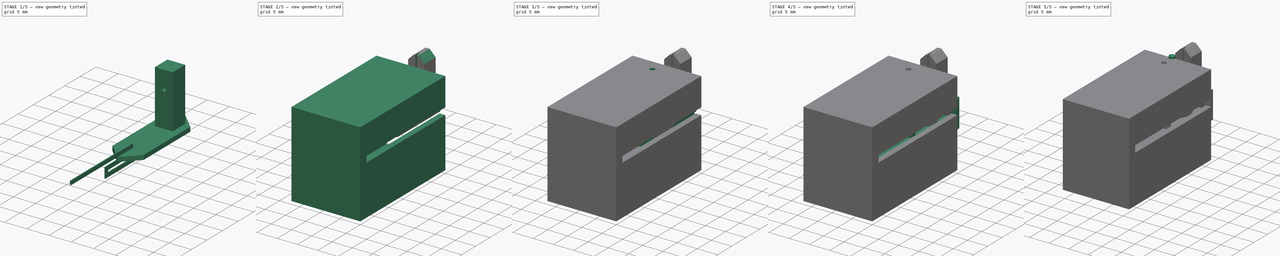
[diagram: build sequence overview — one tinted view per stage of 5, left to right]
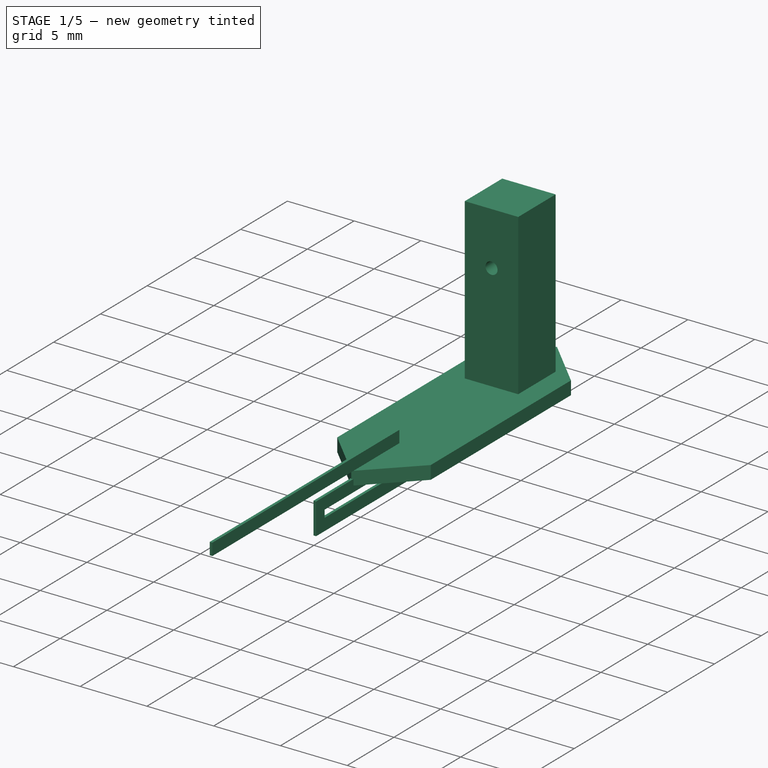
[diagram: stage 1 of 5 — iso view after this stage's code; geometry added in this stage tinted green]
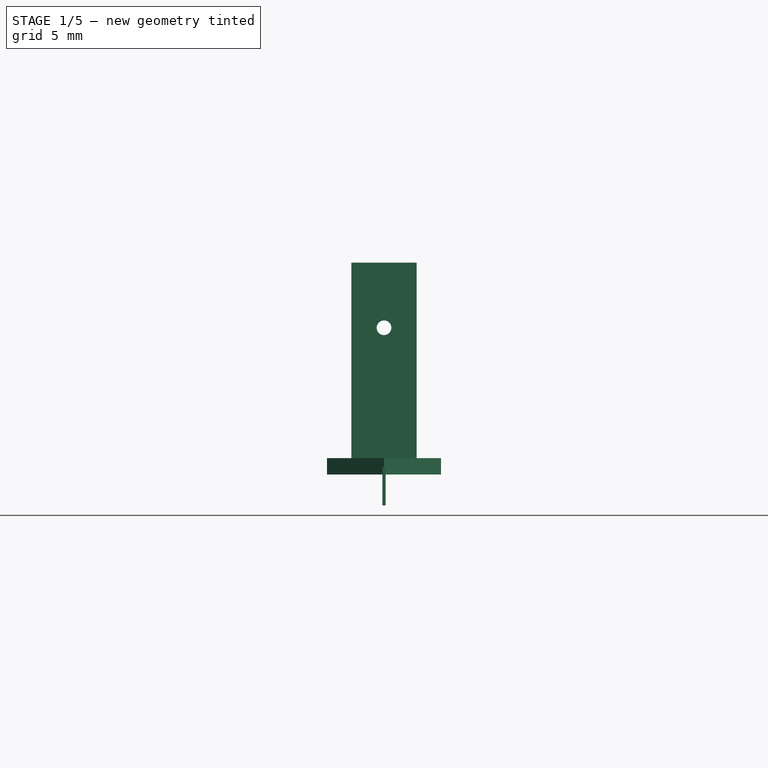
[diagram: stage 1 of 5 — front view after this stage's code; geometry added in this stage tinted green]
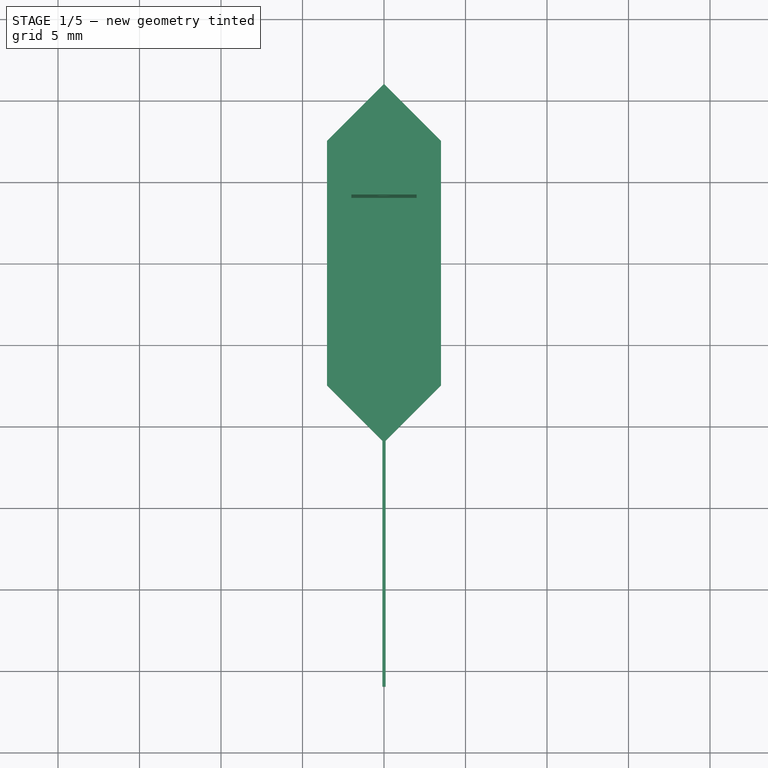
[diagram: stage 1 of 5 — top view after this stage's code; geometry added in this stage tinted green]
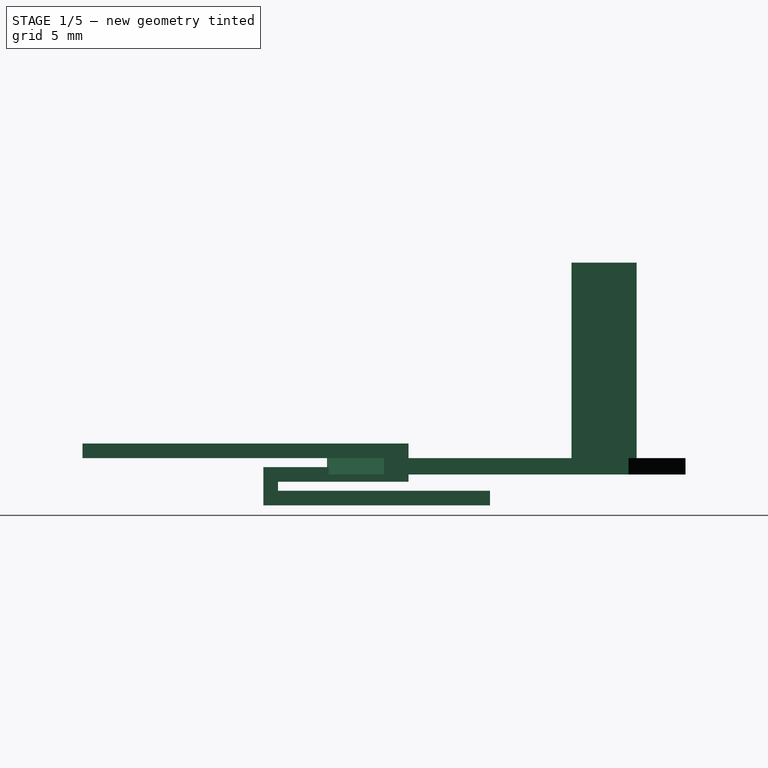
[diagram: stage 1 of 5 — right view after this stage's code; geometry added in this stage tinted green]
FCSTD DOCUMENT  (FreeCAD 0.19R24291 (Git))
Label: Actuator_Model_B_rev(03)
License: All rights reserved
LicenseURL: http://en.wikipedia.org/wiki/All_rights_reserved
objects: Sketcher::SketchObject×21, PartDesign::Pad×15, PartDesign::Body×8, PartDesign::Pocket×6, App::Part×3, Image::ImagePlane×1, PartDesign::Chamfer×1
note: 73 computed .brp shape members not serialized (recipe doc carries the construction recipe); baked Part::Feature solids carry a one-line shape summary decoded from their .brp

FEATURE [Sketcher::SketchObject] Sketch005
  FullyConstrained = true
  MapMode = 5
  Support = -> [XY_Plane007]
  sketch-geometry (6):
    g0: LineSegment StartX=4e-16 StartY=-11 StartZ=0 EndX=3.5 EndY=-7.5 EndZ=0
    g1: LineSegment StartX=3.5 StartY=-7.5 StartZ=0 EndX=3.5 EndY=7.5 EndZ=0
    g2: LineSegment StartX=3.5 StartY=7.5 StartZ=0 EndX=-4e-16 EndY=11 EndZ=0
    g3: LineSegment StartX=-4e-16 StartY=11 StartZ=0 EndX=-3.5 EndY=7.5 EndZ=0
    g4: LineSegment StartX=-3.5 StartY=7.5 StartZ=0 EndX=-3.5 EndY=-7.5 EndZ=0
    g5: LineSegment StartX=-3.5 StartY=-7.5 StartZ=0 EndX=4e-16 EndY=-11 EndZ=0
  constraints (15):
    c: Coincident(g0,g1)
    c: Coincident(g1,g2)
    c: Coincident(g2,g3)
    c: Coincident(g3,g4)
    c: Coincident(g4,g5)
    c: Coincident(g5,g0)
    c: PointOnObject(g5,g-2)
    c: Vertical(g4)
    c: Symmetric(g0,g2,g-1)
    c: Equal(g1,g4)
    c: Symmetric(g1,g3,g-2)
    c: Symmetric(g0,g1,g-1)
    c: DistanceX(g4,g0) = 7
    c: DistanceY(g0,g2) = 22
    c: DistanceY(g4,g4) = 15
FEATURE [PartDesign::Pad] Pad005
  Direction = (1,1,1)
  Length = 1
  Length2 = 100
  Profile = -> Sketch005
  Type = 0
FEATURE [Sketcher::SketchObject] Sketch006
  FullyConstrained = true
  MapMode = 5
  Placement = pos=(0,0,1) rot=(0,0,1;0rad)
  Support = -> [Pad005]
  sketch-geometry (4):
    g0: LineSegment StartX=-2 StartY=8 StartZ=0 EndX=2 EndY=8 EndZ=0
    g1: LineSegment StartX=2 StartY=8 StartZ=0 EndX=2 EndY=4 EndZ=0
    g2: LineSegment StartX=2 StartY=4 StartZ=0 EndX=-2 EndY=4 EndZ=0
    g3: LineSegment StartX=-2 StartY=4 StartZ=0 EndX=-2 EndY=8 EndZ=0
  constraints (11):
    c: Coincident(g0,g1)
    c: Coincident(g1,g2)
    c: Coincident(g2,g3)
    c: Coincident(g3,g0)
    c: Horizontal(g0)
    c: Vertical(g3)
    c: Symmetric(g2,g1,g-2)
    c: DistanceY(g1,g1) = 4
    c: DistanceX(g2,g2) = 4
    c: Vertical(g1)
    c: DistanceY(g-1,g1) = 4
FEATURE [PartDesign::Pad] Pad006
  BaseFeature = -> Pad005
  Direction = (1,1,1)
  Length = 12
  Length2 = 100
  Profile = -> Sketch006
  Type = 0
FEATURE [Sketcher::SketchObject] Sketch007
  FullyConstrained = true
  MapMode = 5
  Placement = pos=(0,8,0) rot=(0,0.707107,0.707107;3.14159rad)
  Support = -> [Pad006]
  sketch-geometry (1):
    g0: Circle CenterX=0 CenterY=9 CenterZ=0 NormalX=0 NormalY=0 NormalZ=1 AngleXU=0 Radius=0.45
  constraints (3):
    c: PointOnObject(g0,g-2)
    c: DistanceY(g-1,g0) = 9
    c: Radius(g0) = 0.45
FEATURE [PartDesign::Pocket] Pocket
  BaseFeature = -> Pad006
  Length = 10
  Length2 = 100
  Profile = -> Sketch007
  Type = 0
FEATURE [PartDesign::Body] Body003  label="Segment"
  Group = -> [Sketch005,Pad005,Sketch006,Pad006,Sketch007,Pocket,Sketch021,Pocket004,Chamfer]
  Origin = -> Origin007
  Placement = pos=(0,9,2) rot=(1,0,0;1.5708rad)
  Tip = -> Chamfer
FEATURE [PartDesign::Pad] Pad015
  Direction = (1,1,1)
  Length = 0.2
  Length2 = 100
  Midplane = true
  Placement = pos=(0,0,0) rot=(0.57735,0.57735,0.57735;2.0944rad)
  Profile = -> Sketch023
  Type = 0
FEATURE [PartDesign::Body] Body008  label="Spring"
  Group = -> [Sketch023,Pad015]
  Origin = -> Origin014
  Placement = pos=(0,0,8) rot=(0,0,1;0rad)
  Tip = -> Pad015
FEATURE [App::Part] Part001  label="Segment Assy"
  Group = -> [Body003,Body004,Body007,Body008]
  Origin = -> Origin006
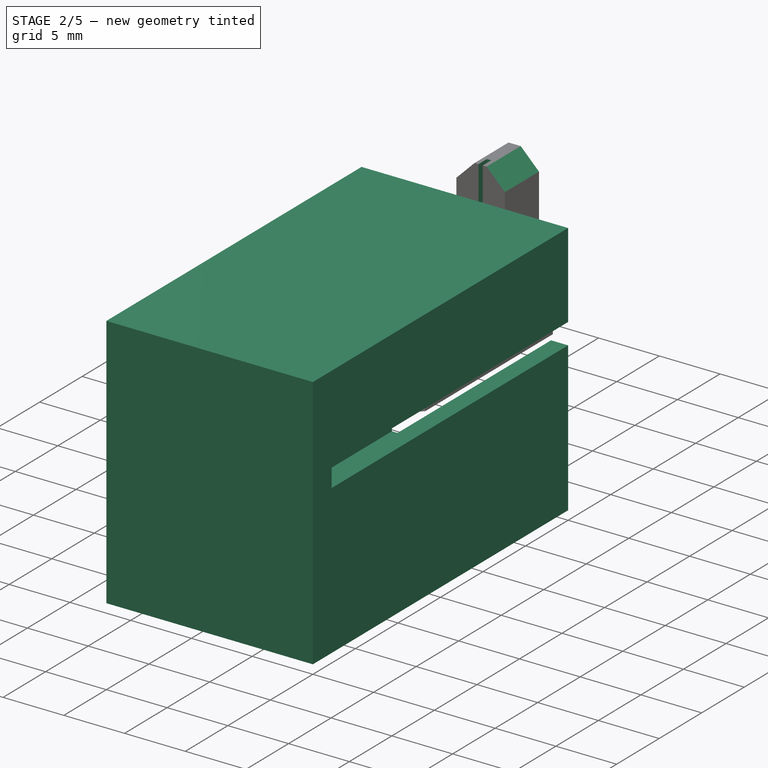
[diagram: stage 2 of 5 — iso view after this stage's code; geometry added in this stage tinted green]
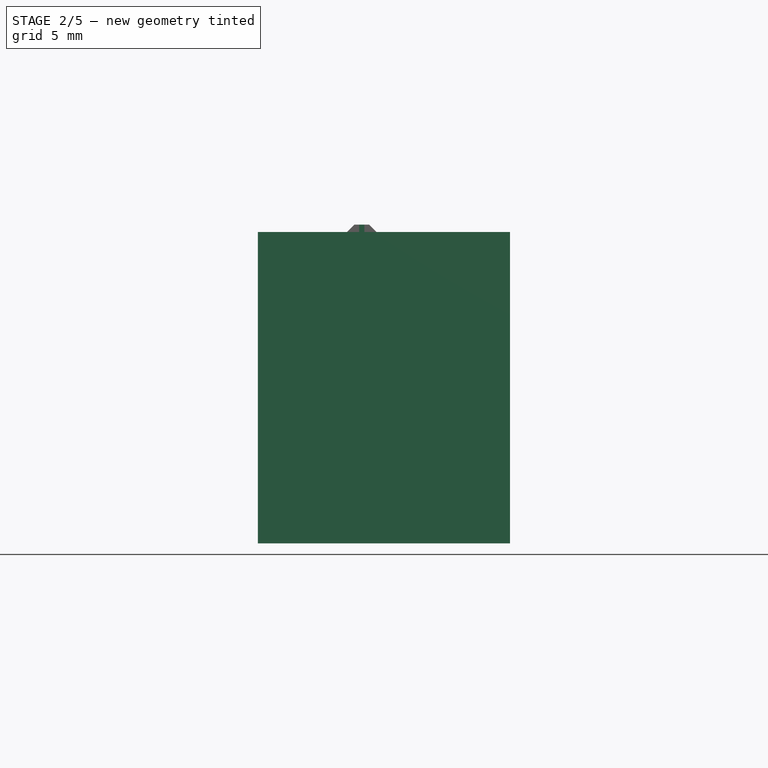
[diagram: stage 2 of 5 — front view after this stage's code; geometry added in this stage tinted green]
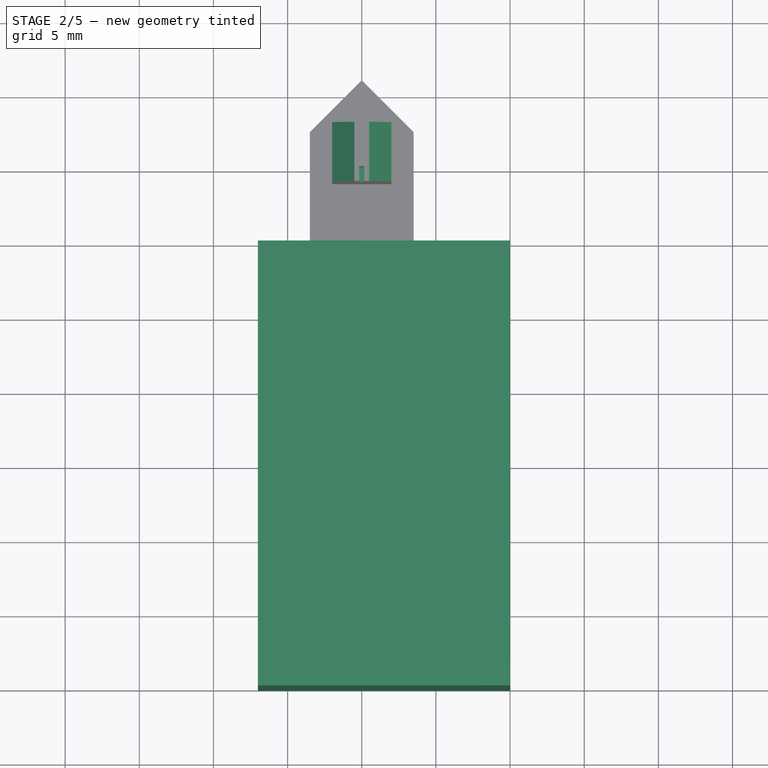
[diagram: stage 2 of 5 — top view after this stage's code; geometry added in this stage tinted green]
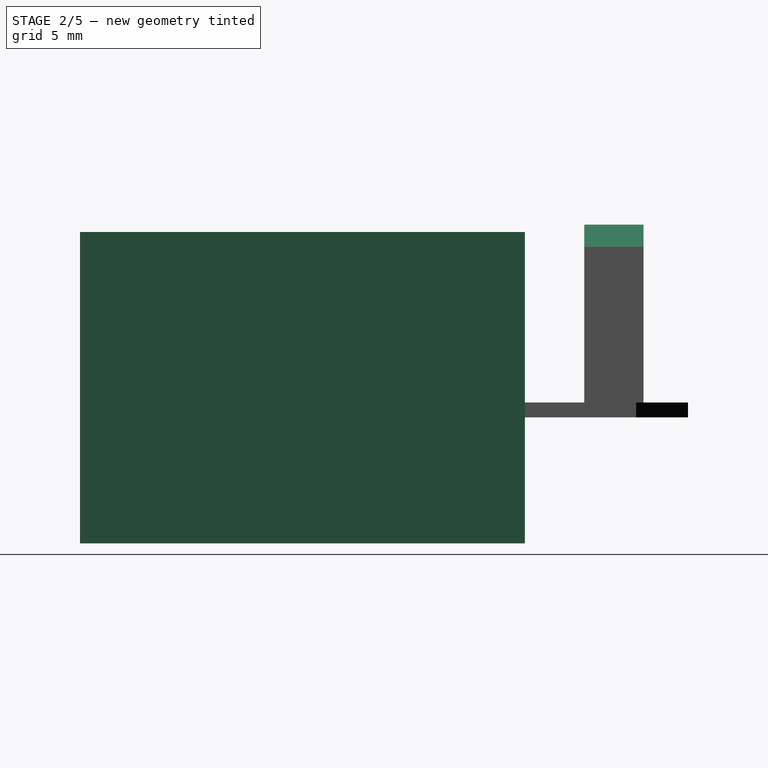
[diagram: stage 2 of 5 — right view after this stage's code; geometry added in this stage tinted green]
FEATURE [Sketcher::SketchObject] Sketch012
  FullyConstrained = true
  MapMode = 5
  Placement = pos=(0,0,0) rot=(1,0,0;1.5708rad)
  Support = -> [XZ_Plane012]
  sketch-geometry (4):
    g0: LineSegment StartX=-7 StartY=12.5 StartZ=0 EndX=10 EndY=12.5 EndZ=0
    g1: LineSegment StartX=10 StartY=12.5 StartZ=0 EndX=10 EndY=-8.5 EndZ=0
    g2: LineSegment StartX=10 StartY=-8.5 StartZ=0 EndX=-7 EndY=-8.5 EndZ=0
    g3: LineSegment StartX=-7 StartY=-8.5 StartZ=0 EndX=-7 EndY=12.5 EndZ=0
  constraints (12):
    c: Coincident(g0,g1)
    c: Coincident(g1,g2)
    c: Coincident(g2,g3)
    c: Coincident(g3,g0)
    c: Horizontal(g0)
    c: Horizontal(g2)
    c: Vertical(g1)
    c: Vertical(g3)
    c: DistanceX(g0) = -7
    c: DistanceY(g0) = 12.5
    c: DistanceX(g1) = 10
    c: DistanceY(g1) = -8.5
FEATURE [PartDesign::Pad] Pad009
  Direction = (1,1,1)
  Length = 30
  Length2 = 100
  Placement = pos=(0,0,0) rot=(1,0,0;1.5708rad)
  Profile = -> Sketch012
  Type = 0
FEATURE [Sketcher::SketchObject] Sketch013
  ExternalGeometry = -> [Pad009]
  FullyConstrained = true
  MapMode = 5
  Placement = pos=(0,0,0) rot=(-1,0,0;1.5708rad)
  Support = -> [Pad009]
  sketch-geometry (4):
    g0: LineSegment StartX=-4.5 StartY=6.5 StartZ=0 EndX=8.6 EndY=6.5 EndZ=0
    g1: LineSegment StartX=8.6 StartY=6.5 StartZ=0 EndX=8.6 EndY=-10.5 EndZ=0
    g2: LineSegment StartX=8.6 StartY=-10.5 StartZ=0 EndX=-4.5 EndY=-10.5 EndZ=0
    g3: LineSegment StartX=-4.5 StartY=-10.5 StartZ=0 EndX=-4.5 EndY=6.5 EndZ=0
  constraints (12):
    c: Coincident(g0,g1)
    c: Coincident(g1,g2)
    c: Coincident(g2,g3)
    c: Coincident(g3,g0)
    c: Horizontal(g0)
    c: Horizontal(g2)
    c: Vertical(g1)
    c: Vertical(g3)
    c: DistanceX(g-3,g0) = 2.5
    c: DistanceY(g-3,g0) = -2
    c: DistanceX(g-4,g1) = -1.4
    c: DistanceY(g-4,g1) = 2
FEATURE [PartDesign::Pocket] Pocket001
  BaseFeature = -> Pad009
  Length = 26.7
  Length2 = 100
  Placement = pos=(0,0,0) rot=(1,0,0;1.5708rad)
  Profile = -> Sketch013
  Type = 0
FEATURE [Sketcher::SketchObject] Sketch014
  FullyConstrained = false
  MapMode = 5
  Placement = pos=(0,0,0) rot=(-1,0,0;1.5708rad)
  Support = -> [Pocket001]
  sketch-geometry (8):
    g0: LineSegment StartX=-5.75 StartY=0.6 StartZ=0 EndX=5.75 EndY=0.6 EndZ=0
    g1: LineSegment StartX=5.75 StartY=0.6 StartZ=0 EndX=5.75 EndY=-0.6 EndZ=0
    g2: LineSegment StartX=5.75 StartY=-0.6 StartZ=0 EndX=-5.75 EndY=-0.6 EndZ=0
    g3: LineSegment StartX=-5.75 StartY=-0.6 StartZ=0 EndX=-5.75 EndY=0.6 EndZ=0
    g4: LineSegment StartX=7.58734 StartY=-3.77195 StartZ=0 EndX=10.7926 EndY=-3.77195 EndZ=0
    g5: LineSegment StartX=10.7926 StartY=-3.77195 StartZ=0 EndX=10.7926 EndY=-5.50814 EndZ=0
    g6: LineSegment StartX=10.7926 StartY=-5.50814 StartZ=0 EndX=7.58734 EndY=-5.50814 EndZ=0
    g7: LineSegment StartX=7.58734 StartY=-5.50814 StartZ=0 EndX=7.58734 EndY=-3.77195 EndZ=0
  constraints (18):
    c: Coincident(g0,g1)
    c: Coincident(g1,g2)
    c: Coincident(g2,g3)
    c: Coincident(g3,g0)
    c: Horizontal(g2)
    c: Vertical(g3)
    c: Symmetric(g0,g0,g-2)
    c: Symmetric(g1,g0,g-1)
    c: DistanceX(g0,g0) = 11.5
    c: DistanceY(g3,g3) = 1.2
    c: Coincident(g4,g5)
    c: Coincident(g5,g6)
    c: Coincident(g6,g7)
    c: Coincident(g7,g4)
    c: Horizontal(g4)
    c: Horizontal(g6)
    c: Vertical(g5)
    c: Vertical(g7)
FEATURE [PartDesign::Pocket] Pocket002
  BaseFeature = -> Pocket001
  Length = 27.8
  Length2 = 100
  Placement = pos=(0,0,0) rot=(1,0,0;1.5708rad)
  Profile = -> Sketch014
  Type = 0
FEATURE [PartDesign::Body] Body002  label="Magnet"
  Group = -> [Sketch004,Pad004]
  Origin = -> Origin005
  Tip = -> Pad004
FEATURE [Image::ImagePlane] ImagePlane
  XSize = 15.8049
  YSize = 30.5983
FEATURE [App::Part] Part  label="Clock Parts"
  Group = -> [Body,Body001,Body002,ImagePlane]
  Origin = -> Origin
FEATURE [Sketcher::SketchObject] Sketch021
  FullyConstrained = true
  MapMode = 5
  Placement = pos=(0,0,13) rot=(0,0,1;0rad)
  Support = -> [Pocket]
  sketch-geometry (4):
    g0: LineSegment StartX=-0.175 StartY=5 StartZ=0 EndX=0.175 EndY=5 EndZ=0
    g1: LineSegment StartX=0.175 StartY=5 StartZ=0 EndX=0.175 EndY=4 EndZ=0
    g2: LineSegment StartX=0.175 StartY=4 StartZ=0 EndX=-0.175 EndY=4 EndZ=0
    g3: LineSegment StartX=-0.175 StartY=4 StartZ=0 EndX=-0.175 EndY=5 EndZ=0
  constraints (11):
    c: Coincident(g0,g1)
    c: Coincident(g1,g2)
    c: Coincident(g2,g3)
    c: Coincident(g3,g0)
    c: Horizontal(g2)
    c: Vertical(g1)
    c: Vertical(g3)
    c: Symmetric(g0,g0,g-2)
    c: DistanceX(g0,g0) = 0.35
    c: DistanceY(g1,g1) = 1
    c: DistanceY(g-1,g1) = 4
FEATURE [PartDesign::Pocket] Pocket004
  BaseFeature = -> Pocket
  Length = 3
  Length2 = 100
  Profile = -> Sketch021
  Type = 0
FEATURE [PartDesign::Body] Body006  label="CaseBody"
  Group = -> [Sketch012,Pad009,Sketch013,Pocket001,Sketch014,Pocket002,Sketch016,Pocket003,Sketch022,Pocket005]
  Origin = -> Origin012
  Tip = -> Pocket005
FEATURE [App::Part] Part003  label="Case"
  Group = -> [Body006]
  Origin = -> Origin011
  Placement = pos=(0,3,0) rot=(0,0,1;0rad)
FEATURE [Sketcher::SketchObject] Sketch023
  FullyConstrained = true
  MapMode = 5
  Placement = pos=(0,0,0) rot=(0.57735,0.57735,0.57735;2.0944rad)
  Support = -> [YZ_Plane014]
  sketch-geometry (12):
    g0: LineSegment StartX=-26 StartY=1.9 StartZ=0 EndX=-26 EndY=1 EndZ=0
    g1: LineSegment StartX=-26 StartY=1 StartZ=0 EndX=-6.9 EndY=1 EndZ=0
    g2: LineSegment StartX=-6.9 StartY=1 StartZ=0 EndX=-6.9 EndY=0.45 EndZ=0
    g3: LineSegment StartX=-6.9 StartY=0.45 StartZ=0 EndX=-14.9 EndY=0.45 EndZ=0
    g4: LineSegment StartX=-14.9 StartY=0.45 StartZ=0 EndX=-14.9 EndY=-1.9 EndZ=0
    g5: LineSegment StartX=-14.9 StartY=-1.9 StartZ=0 EndX=-1 EndY=-1.9 EndZ=0
    g6: LineSegment StartX=-26 StartY=1.9 StartZ=0 EndX=-6 EndY=1.9 EndZ=0
    g7: LineSegment StartX=-6 StartY=1.9 StartZ=0 EndX=-6 EndY=-0.45 EndZ=0
    g8: LineSegment StartX=-6 StartY=-0.45 StartZ=0 EndX=-14 EndY=-0.45 EndZ=0
    g9: LineSegment StartX=-14 StartY=-0.45 StartZ=0 EndX=-14 EndY=-1 EndZ=0
    g10: LineSegment StartX=-14 StartY=-1 StartZ=0 EndX=-1 EndY=-1 EndZ=0
    g11: LineSegment StartX=-1 StartY=-1 StartZ=0 EndX=-1 EndY=-1.9 EndZ=0
  constraints (36):
    c: Vertical(g0)
    c: Coincident(g4,g5)
    c: Horizontal(g5)
    c: Coincident(g0,g6)
    c: Horizontal(g6)
    c: Coincident(g6,g7)
    c: Vertical(g7)
    c: Coincident(g7,g8)
    c: Horizontal(g8)
    c: Coincident(g8,g9)
    c: Vertical(g9)
    c: Coincident(g9,g10)
    c: Coincident(g10,g11)
    c: Coincident(g11,g5)
    c: Vertical(g11)
    c: DistanceY(g11,g11) = 0.9
    c: DistanceX(g5,g-1) = 1
    c: Horizontal(g10)
    c: Vertical(g2)
    c: DistanceY(g9,g9) = 0.55
    c: Vertical(g4)
    c: DistanceY(g4,g-1) = 1.9
    c: DistanceY(g-1,g0) = 1.9
    c: DistanceY(g0,g0) = 0.9
    c: DistanceY(g2,g2) = 0.55
    c: Coincident(g1,g2)
    c: Coincident(g2,g3)
    c: Coincident(g3,g4)
    c: Horizontal(g1)
    c: Horizontal(g3)
    c: Coincident(g0,g1)
    c: DistanceX(g6,g-1) = 6
    c: DistanceX(g1,g6) = 0.9
    c: DistanceX(g9,g-1) = 14
    c: DistanceX(g3,g8) = 0.9
    c: DistanceX(g0,g-1) = 26
FEATURE [PartDesign::Chamfer] Chamfer
  Angle = 45
  Base = -> Pocket004 [Edge34,Edge25]
  BaseFeature = -> Pocket004
  ChamferType = 0
  FlipDirection = false
  Size = 1.5
  Size2 = 1
  SupportTransform = false
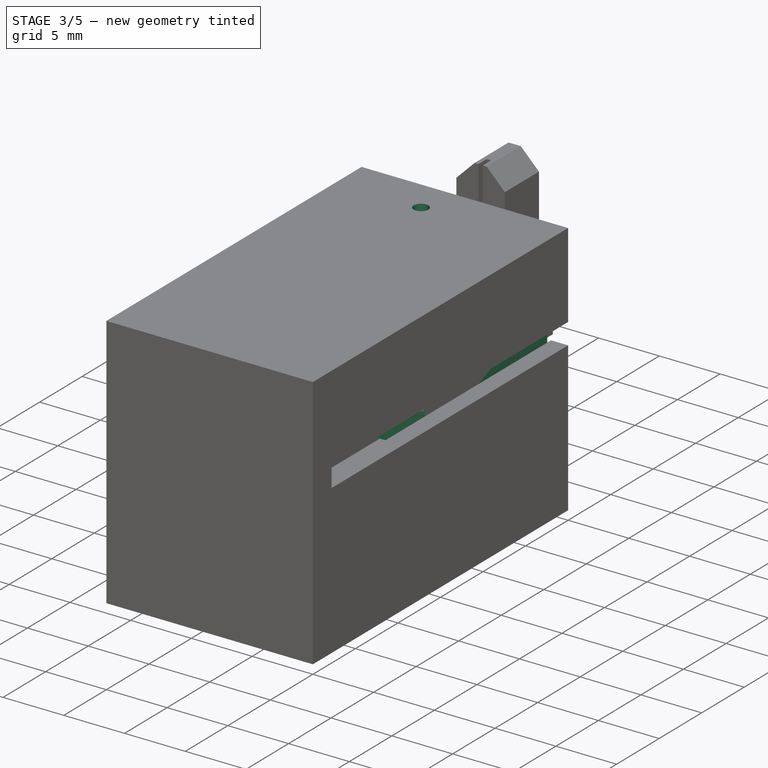
[diagram: stage 3 of 5 — iso view after this stage's code; geometry added in this stage tinted green]
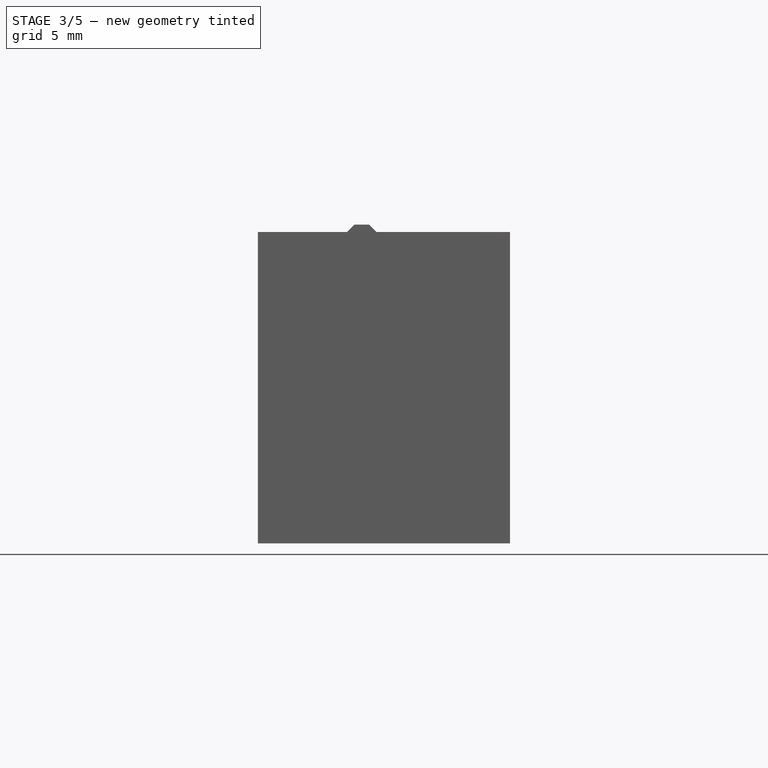
[diagram: stage 3 of 5 — front view after this stage's code; geometry added in this stage tinted green]
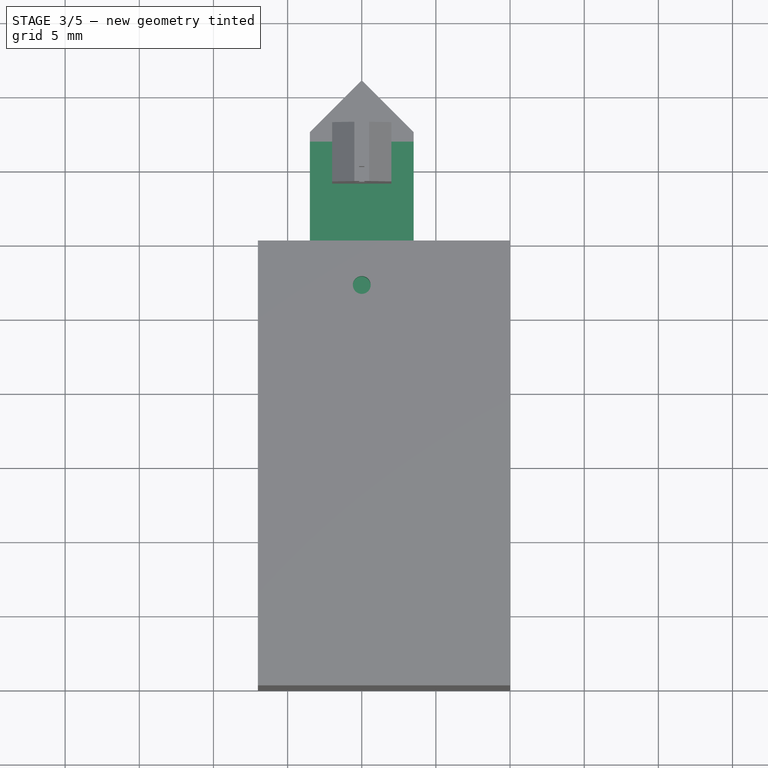
[diagram: stage 3 of 5 — top view after this stage's code; geometry added in this stage tinted green]
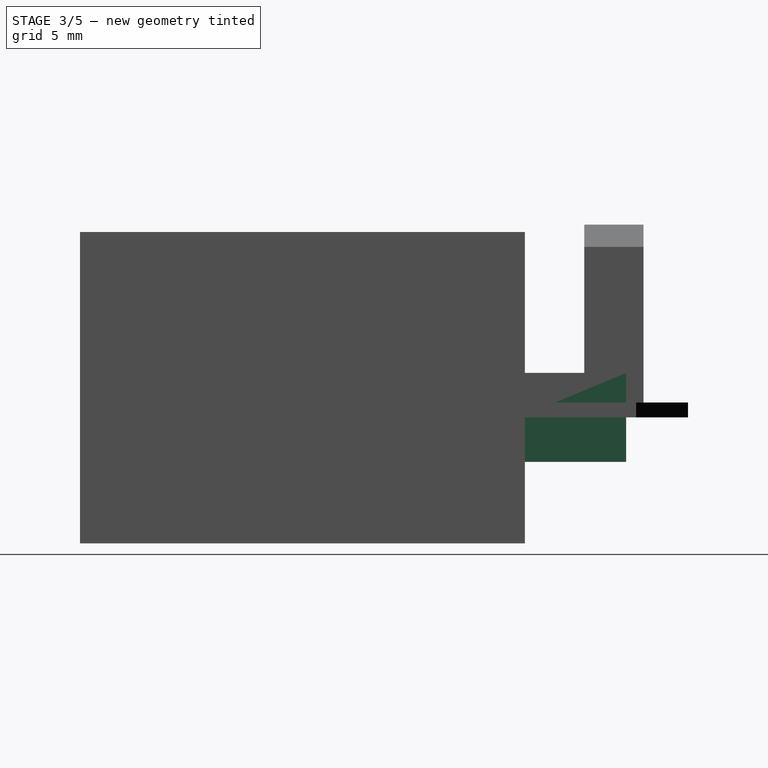
[diagram: stage 3 of 5 — right view after this stage's code; geometry added in this stage tinted green]
FEATURE [Sketcher::SketchObject] Sketch016
  FullyConstrained = true
  MapMode = 5
  Placement = pos=(0,-1.9e-15,-8.5) rot=(1,0,0;3.14159rad)
  Support = -> [Pocket002]
  sketch-geometry (1):
    g0: Circle CenterX=0 CenterY=3 CenterZ=0 NormalX=0 NormalY=0 NormalZ=1 AngleXU=0 Radius=0.6
  constraints (3):
    c: PointOnObject(g0,g-2)
    c: Radius(g0) = 0.6
    c: DistanceY(g-1,g0) = 3
FEATURE [PartDesign::Pocket] Pocket003
  BaseFeature = -> Pocket002
  Length = 27
  Length2 = 100
  Placement = pos=(0,0,0) rot=(1,0,0;1.5708rad)
  Profile = -> Sketch016
  Type = 0
FEATURE [PartDesign::Body] Body  label="Plate"
  Group = -> [Sketch,Pad]
  Origin = -> Origin001
  Tip = -> Pad
FEATURE [Sketcher::SketchObject] Sketch001
  FullyConstrained = false
  MapMode = 5
  Support = -> [XY_Plane003]
  sketch-geometry (4):
    g0: LineSegment StartX=-3.5 StartY=6.82831 StartZ=0 EndX=3.5 EndY=6.82831 EndZ=0
    g1: LineSegment StartX=3.5 StartY=6.82831 StartZ=0 EndX=3.5 EndY=-7.57169 EndZ=0
    g2: LineSegment StartX=3.5 StartY=-7.57169 StartZ=0 EndX=-3.5 EndY=-7.57169 EndZ=0
    g3: LineSegment StartX=-3.5 StartY=-7.57169 StartZ=0 EndX=-3.5 EndY=6.82831 EndZ=0
  constraints (9):
    c: Coincident(g0,g1)
    c: Coincident(g1,g2)
    c: Coincident(g2,g3)
    c: Coincident(g3,g0)
    c: Vertical(g3)
    c: DistanceY(g1,g1) = 14.4
    c: DistanceX(g2,g2) = 7
    c: Symmetric(g0,g0,g-2)
    c: Horizontal(g2)
FEATURE [PartDesign::Pad] Pad001
  Direction = (1,1,1)
  Length = 6
  Length2 = 100
  Midplane = true
  Profile = -> Sketch001
  Type = 0
FEATURE [PartDesign::Body] Body001  label="Coil"
  Group = -> [Sketch001,Pad001,Sketch002,Pad002,Sketch003,Pad003,Sketch019,Pad013,Sketch020,Pad014]
  Origin = -> Origin003
  Placement = pos=(3.5,-13,0) rot=(0,0,1;0rad)
  Tip = -> Pad014
FEATURE [Sketcher::SketchObject] Sketch004
  FullyConstrained = true
  MapMode = 5
  Support = -> [XY_Plane005]
  sketch-geometry (2):
    g0: Circle CenterX=0 CenterY=0 CenterZ=0 NormalX=0 NormalY=0 NormalZ=1 AngleXU=0 Radius=1.025
    g1: Circle CenterX=0 CenterY=0 CenterZ=0 NormalX=0 NormalY=0 NormalZ=1 AngleXU=0 Radius=2.5
  constraints (4):
    c: Coincident(g0,g-1)
    c: Coincident(g1,g0)
    c: Radius(g1) = 2.5
    c: Radius(g0) = 1.025
FEATURE [PartDesign::Pad] Pad004
  Direction = (1,1,1)
  Length = 2.4
  Length2 = 100
  Midplane = true
  Profile = -> Sketch004
  Type = 0
FEATURE [Sketcher::SketchObject] Sketch022
  FullyConstrained = true
  MapMode = 5
  Placement = pos=(0,-26.7,1e-16) rot=(-1,0,0;1.5708rad)
  Support = -> [Pocket003]
  sketch-geometry (4):
    g0: LineSegment StartX=-0.3 StartY=-7.5 StartZ=0 EndX=0.3 EndY=-7.5 EndZ=0
    g1: LineSegment StartX=0.3 StartY=-7.5 StartZ=0 EndX=0.3 EndY=-10.5 EndZ=0
    g2: LineSegment StartX=0.3 StartY=-10.5 StartZ=0 EndX=-0.3 EndY=-10.5 EndZ=0
    g3: LineSegment StartX=-0.3 StartY=-10.5 StartZ=0 EndX=-0.3 EndY=-7.5 EndZ=0
  constraints (11):
    c: Coincident(g0,g1)
    c: Coincident(g1,g2)
    c: Coincident(g2,g3)
    c: Coincident(g3,g0)
    c: Horizontal(g2)
    c: Vertical(g1)
    c: Vertical(g3)
    c: Symmetric(g0,g0,g-2)
    c: DistanceX(g0,g0) = 0.6
    c: DistanceY(g1,g-1) = 10.5
    c: DistanceY(g1,g1) = 3
FEATURE [PartDesign::Pocket] Pocket005
  BaseFeature = -> Pocket003
  Length = 3
  Length2 = 100
  Placement = pos=(0,0,0) rot=(1,0,0;1.5708rad)
  Profile = -> Sketch022
  Type = 0
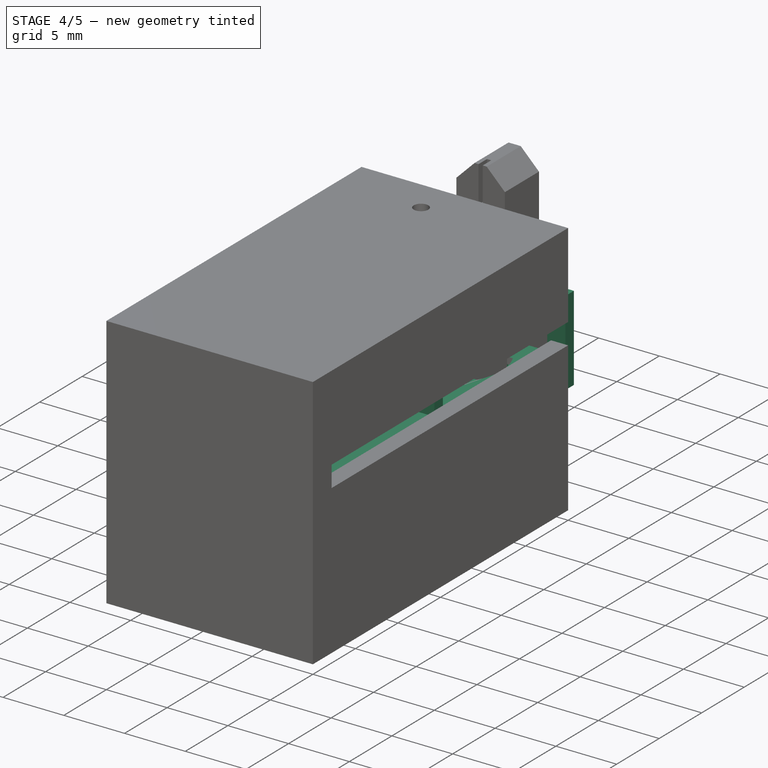
[diagram: stage 4 of 5 — iso view after this stage's code; geometry added in this stage tinted green]
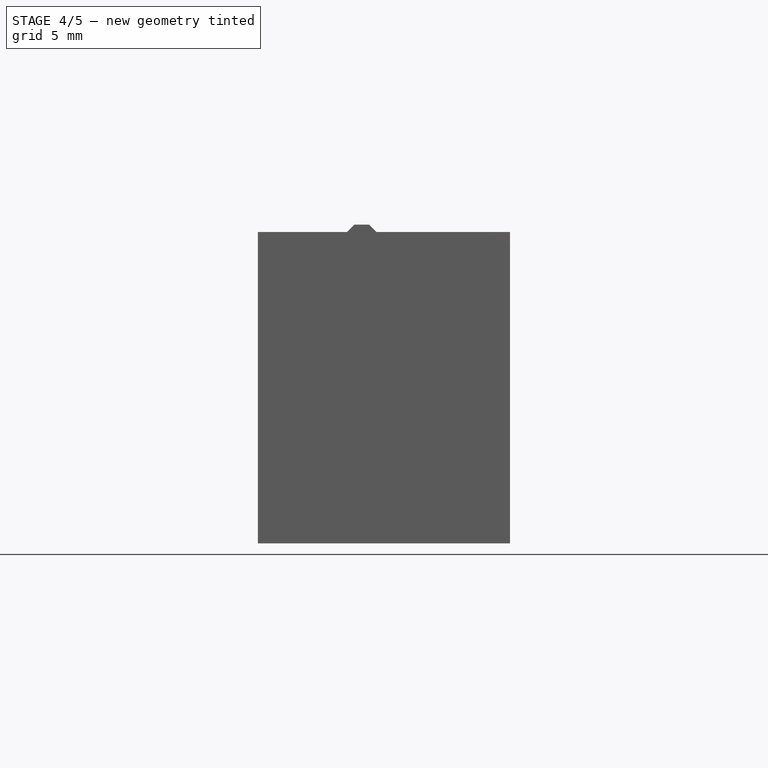
[diagram: stage 4 of 5 — front view after this stage's code; geometry added in this stage tinted green]
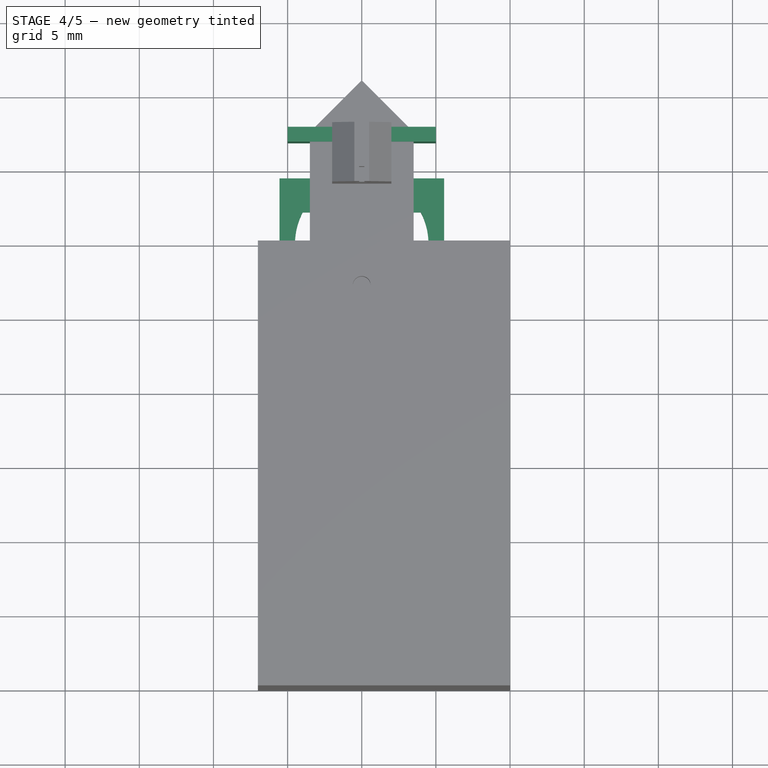
[diagram: stage 4 of 5 — top view after this stage's code; geometry added in this stage tinted green]
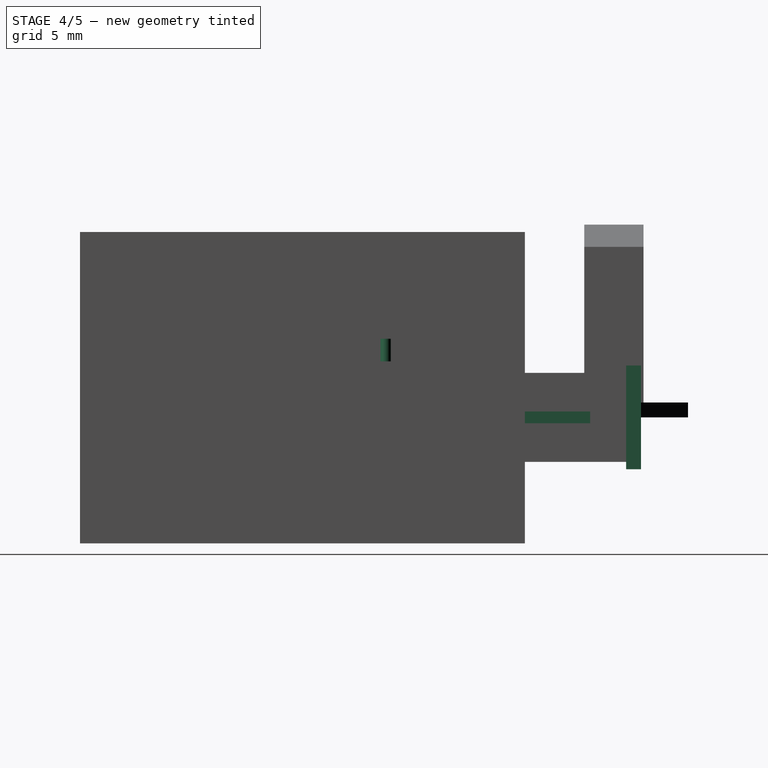
[diagram: stage 4 of 5 — right view after this stage's code; geometry added in this stage tinted green]
FEATURE [PartDesign::Body] Body004  label="Pin"
  Group = -> [Sketch008,Pad007,Sketch018,Pad012]
  Origin = -> Origin008
  Placement = pos=(0,0,2) rot=(0,0,1;0rad)
  Tip = -> Pad012
FEATURE [Sketcher::SketchObject] Sketch
  FullyConstrained = false
  MapMode = 5
  Support = -> [XY_Plane001]
  sketch-geometry (24):
    g0: LineSegment StartX=5.55 StartY=4.4 StartZ=0 EndX=5.55 EndY=-24.8 EndZ=0
    g1: LineSegment StartX=5.55 StartY=-24.8 StartZ=0 EndX=-5.55 EndY=-24.8 EndZ=0
    g2: LineSegment StartX=-5.55 StartY=-24.8 StartZ=0 EndX=-5.55 EndY=4.4 EndZ=0
    g3: LineSegment StartX=-5.55 StartY=4.4 StartZ=0 EndX=-1.65 EndY=4.4 EndZ=0
    g4: LineSegment StartX=-1.65 StartY=4.4 StartZ=0 EndX=-1.65 EndY=2.85788 EndZ=0
    g5: LineSegment StartX=-1.66888 StartY=-7.8506 StartZ=0 EndX=-2.25 EndY=-8.61046 EndZ=0
    g6: LineSegment StartX=-2.25 StartY=-8.61046 StartZ=0 EndX=-2.25 EndY=-20.65 EndZ=0
    g7: LineSegment StartX=-2.25 StartY=-20.65 StartZ=0 EndX=2.25 EndY=-20.65 EndZ=0
    g8: LineSegment StartX=1.66888 StartY=-7.87451 StartZ=0 EndX=1.66888 EndY=-2.8469 EndZ=0
    g9: LineSegment StartX=1.65 StartY=4.4 StartZ=0 EndX=5.55 EndY=4.4 EndZ=0
    g10: ArcOfCircle CenterX=2e-16 CenterY=-2e-16 CenterZ=0 NormalX=0 NormalY=0 NormalZ=1 AngleXU=0 Radius=3.3 StartAngle=2.0944 EndAngle=2.45182
    g11: ArcOfCircle CenterX=2e-16 CenterY=-2e-16 CenterZ=0 NormalX=0 NormalY=0 NormalZ=1 AngleXU=0 Radius=4.5 StartAngle=2.65607 EndAngle=3.62711
    g12: LineSegment StartX=-3.97995 StartY=2.1 StartZ=0 EndX=-2.54558 EndY=2.1 EndZ=0
    g13: LineSegment StartX=-3.97995 StartY=-2.1 StartZ=0 EndX=-2.54558 EndY=-2.1 EndZ=0
    g14: LineSegment StartX=2.54558 StartY=2.1 StartZ=0 EndX=3.97995 EndY=2.1 EndZ=0
    g15: ArcOfCircle CenterX=2e-16 CenterY=-2e-16 CenterZ=0 NormalX=0 NormalY=0 NormalZ=1 AngleXU=0 Radius=3.3 StartAngle=3.83137 EndAngle=4.18217
    g16: ArcOfCircle CenterX=-0.000102365 CenterY=0.000124091 CenterZ=0 NormalX=0 NormalY=0 NormalZ=1 AngleXU=0 Radius=3.3 StartAngle=0.689726 EndAngle=1.04716
    g17: LineSegment StartX=2.54558 StartY=-2.1 StartZ=0 EndX=3.97995 EndY=-2.1 EndZ=0
    g18: ArcOfCircle CenterX=4e-16 CenterY=0 CenterZ=0 NormalX=0 NormalY=0 NormalZ=1 AngleXU=0 Radius=4.5 StartAngle=5.79767 EndAngle=6.7687
    g19: LineSegment StartX=1.65 StartY=2.85795 StartZ=0 EndX=1.65 EndY=4.4 EndZ=0
    g20: LineSegment StartX=-1.66888 StartY=-2.8469 StartZ=0 EndX=-1.66888 EndY=-7.8506 EndZ=0
    g21: ArcOfCircle CenterX=0.000105409 CenterY=-0.000123728 CenterZ=0 NormalX=0 NormalY=0 NormalZ=1 AngleXU=0 Radius=3.29984 StartAngle=5.2426 EndAngle=5.59342
    g22: LineSegment StartX=2.25 StartY=-8.61046 StartZ=0 EndX=2.25 EndY=-20.65 EndZ=0
    g23: LineSegment StartX=1.66888 StartY=-7.87451 StartZ=0 EndX=2.25 EndY=-8.61046 EndZ=0
  constraints (60):
    c: Vertical(g0)
    c: Coincident(g0,g1)
    c: Horizontal(g1)
    c: Coincident(g1,g2)
    c: Vertical(g2)
    c: Coincident(g2,g3)
    c: Horizontal(g3)
    c: Coincident(g3,g4)
    c: Vertical(g4)
    c: Coincident(g20,g5)
    c: Coincident(g5,g6)
    c: Vertical(g6)
    c: Coincident(g6,g7)
    c: Coincident(g19,g9)
    c: Coincident(g9,g0)
    c: Coincident(g11,g10)
    c: Radius(g10) = 3.3
    c: Radius(g11) = 4.5
    c: Horizontal(g12)
    c: Horizontal(g13)
    c: PointOnObject(g14,g10)
    c: Coincident(g18,g14)
    c: Coincident(g11,g12)
    c: Equal(g10,g15)
    c: Coincident(g10,g12)
    c: Coincident(g10,g15)
    c: Equal(g15,g16)
    c: Symmetric(g0,g2,g-2)
    c: Coincident(g23,g22)
    c: Vertical(g22)
    c: Coincident(g22,g7)
    c: Symmetric(g7,g6,g-2)
    c: DistanceX(g0) = 5.55
    c: DistanceY(g0) = -24.8
    c: Vertical(g19)
    c: Vertical(g8)
    c: Vertical(g20)
    c: Symmetric(g3,g9,g-2)
    c: DistanceX(g9) = 1.65
    c: DistanceY(g9) = 4.4
    c: DistanceX(g7) = 2.25
    c: DistanceY(g7) = -20.65
    c: Coincident(g10,g4)
    c: Coincident(g16,g19)
    c: Coincident(g14,g16)
    c: Coincident(g17,g18)
    c: Coincident(g11,g13)
    c: Coincident(g13,g15)
    c: Coincident(g17,g21)
    c: Coincident(g8,g21)
    c: Coincident(g15,g20)
    c: Symmetric(g14,g17,g-1)
    c: Symmetric(g10,g13,g-1)
    c: Coincident(g8,g23)
    c: DistanceY(g17,g14) = 4.2
    c: Symmetric(g13,g17,g-2)
    c: Radius(g18) = 4.5
    c: Symmetric(g14,g11,g-2)
    c: Symmetric(g17,g11,g-2)
    c: Symmetric(g8,g15,g-2)
FEATURE [PartDesign::Pad] Pad
  Direction = (1,1,1)
  Length = 0.8
  Length2 = 100
  Midplane = true
  Profile = -> Sketch
  Type = 0
FEATURE [Sketcher::SketchObject] Sketch002
  ExternalGeometry = -> [Pad001]
  FullyConstrained = false
  MapMode = 5
  Placement = pos=(0,-7.57169,0) rot=(1,0,0;1.5708rad)
  Support = -> [Pad001]
  sketch-geometry (4):
    g0: LineSegment StartX=-5 StartY=3.5 StartZ=0 EndX=5 EndY=3.5 EndZ=0
    g1: LineSegment StartX=5 StartY=3.5 StartZ=0 EndX=5 EndY=-3.5 EndZ=0
    g2: LineSegment StartX=5 StartY=-3.5 StartZ=0 EndX=-5 EndY=-3.5 EndZ=0
    g3: LineSegment StartX=-5 StartY=-3.5 StartZ=0 EndX=-5 EndY=3.5 EndZ=0
  constraints (10):
    c: Coincident(g0,g1)
    c: Coincident(g1,g2)
    c: Coincident(g2,g3)
    c: Coincident(g3,g0)
    c: Horizontal(g0)
    c: Vertical(g1)
    c: Vertical(g3)
    c: DistanceY(g1,g1) = 7
    c: DistanceX(g2,g2) = 10
    c: Symmetric(g2,g1,g-2)
FEATURE [PartDesign::Pad] Pad002
  BaseFeature = -> Pad001
  Direction = (1,1,1)
  Length = 1
  Length2 = 100
  Profile = -> Sketch002
  Type = 0
FEATURE [Sketcher::SketchObject] Sketch003
  ExternalGeometry = -> [Pad002]
  FullyConstrained = false
  MapMode = 5
  Placement = pos=(0,6.82831,0) rot=(0,0.707107,0.707107;3.14159rad)
  Support = -> [Pad002]
  sketch-geometry (4):
    g0: LineSegment StartX=-5 StartY=3.5 StartZ=0 EndX=5 EndY=3.5 EndZ=0
    g1: LineSegment StartX=5 StartY=3.5 StartZ=0 EndX=5 EndY=-3.5 EndZ=0
    g2: LineSegment StartX=5 StartY=-3.5 StartZ=0 EndX=-5 EndY=-3.5 EndZ=0
    g3: LineSegment StartX=-5 StartY=-3.5 StartZ=0 EndX=-5 EndY=3.5 EndZ=0
  constraints (10):
    c: Coincident(g0,g1)
    c: Coincident(g1,g2)
    c: Coincident(g2,g3)
    c: Coincident(g3,g0)
    c: Horizontal(g0)
    c: Vertical(g1)
    c: Vertical(g3)
    c: DistanceY(g3,g3) = 7
    c: DistanceX(g2,g2) = 10
    c: Symmetric(g1,g2,g-2)
FEATURE [PartDesign::Pad] Pad003
  BaseFeature = -> Pad002
  Direction = (1,1,1)
  Length = 1
  Length2 = 100
  Profile = -> Sketch003
  Type = 0
FEATURE [Sketcher::SketchObject] Sketch019
  ExternalGeometry = -> [Pad003]
  FullyConstrained = false
  MapMode = 5
  Support = -> [XY_Plane003]
  sketch-geometry (8):
    g0: ArcOfCircle CenterX=-2.53973 CenterY=-9.54527 CenterZ=0 NormalX=0 NormalY=0 NormalZ=1 AngleXU=0 Radius=1 StartAngle=3.14159 EndAngle=6.28319
    g1: LineSegment StartX=-3.53973 StartY=-8.57169 StartZ=0 EndX=-3.53973 EndY=-9.54527 EndZ=0
    g2: LineSegment StartX=-1.53973 StartY=-8.57169 StartZ=0 EndX=-1.53973 EndY=-9.54527 EndZ=0
    g3: LineSegment StartX=-3.53973 StartY=-8.57169 StartZ=0 EndX=-1.53973 EndY=-8.57169 EndZ=0
    g4: ArcOfCircle CenterX=2.53973 CenterY=-9.54527 CenterZ=0 NormalX=0 NormalY=0 NormalZ=1 AngleXU=0 Radius=1 StartAngle=3.14159 EndAngle=6.28319
    g5: LineSegment StartX=3.53973 StartY=-8.57169 StartZ=0 EndX=3.53973 EndY=-9.54527 EndZ=0
    g6: LineSegment StartX=1.53973 StartY=-8.57169 StartZ=0 EndX=1.53973 EndY=-9.54527 EndZ=0
    g7: LineSegment StartX=3.53973 StartY=-8.57169 StartZ=0 EndX=1.53973 EndY=-8.57169 EndZ=0
  constraints (17):
    c: Tangent(g1,g0) = -1.5708
    c: Tangent(g2,g0) = 1.5708
    c: Vertical(g1)
    c: Coincident(g3,g1)
    c: Coincident(g3,g2)
    c: Horizontal(g3)
    c: Vertical(g2)
    c: Radius(g0) = 1
    c: PointOnObject(g1,g-3)
    c: Tangent(g5,g4) = 1.5708
    c: Tangent(g6,g4) = -1.5708
    c: Vertical(g5)
    c: Coincident(g7,g5)
    c: Coincident(g7,g6)
    c: Horizontal(g7)
    c: Vertical(g6)
    c: Radius(g4) = 1
FEATURE [PartDesign::Pad] Pad013
  BaseFeature = -> Pad003
  Direction = (1,1,1)
  Length = 2.3
  Length2 = 100
  Profile = -> Sketch019
  Type = 0
FEATURE [Sketcher::SketchObject] Sketch020
  FullyConstrained = false
  MapMode = 5
  Placement = pos=(0,0,2.3) rot=(0,0,1;0rad)
  Support = -> [Pad013]
  sketch-geometry (2):
    g0: Circle CenterX=-2.5 CenterY=-9.38461 CenterZ=0 NormalX=0 NormalY=0 NormalZ=1 AngleXU=0 Radius=0.35
    g1: Circle CenterX=2.5 CenterY=-9.38461 CenterZ=0 NormalX=0 NormalY=0 NormalZ=1 AngleXU=0 Radius=0.35
  constraints (4):
    c: Symmetric(g1,g0,g-2)
    c: Radius(g1) = 0.35
    c: Equal(g1,g0)
    c: DistanceX(g0,g1) = 5
FEATURE [PartDesign::Pad] Pad014
  BaseFeature = -> Pad013
  Direction = (1,1,1)
  Length = 3
  Length2 = 100
  Profile = -> Sketch020
  Type = 0
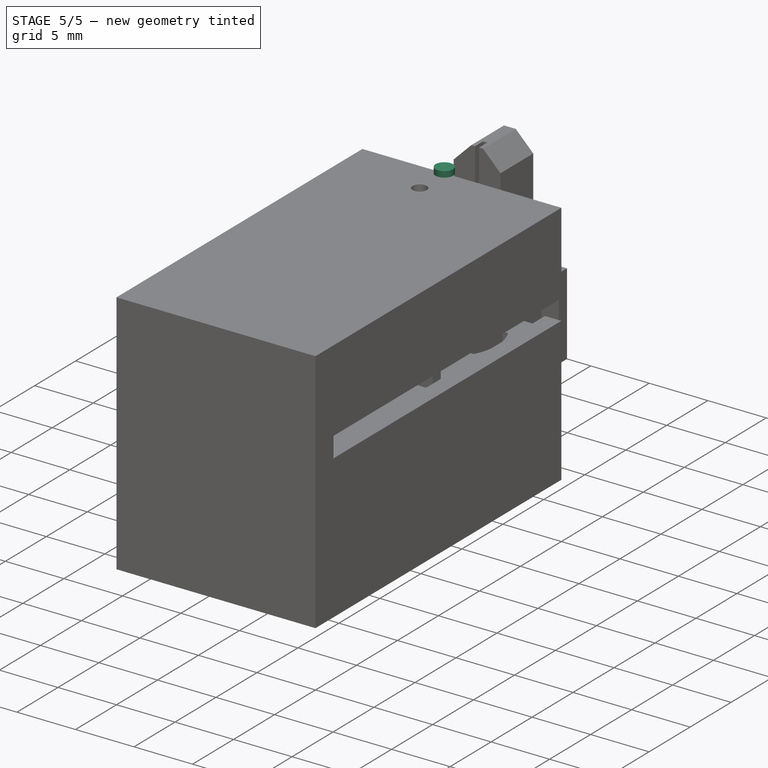
[diagram: stage 5 of 5 — iso view after this stage's code; geometry added in this stage tinted green]
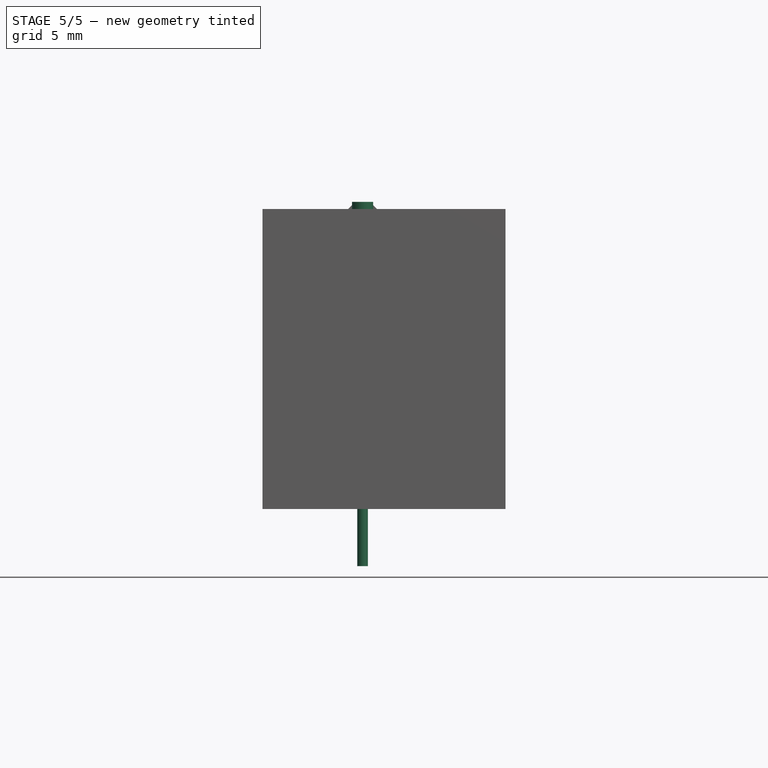
[diagram: stage 5 of 5 — front view after this stage's code; geometry added in this stage tinted green]
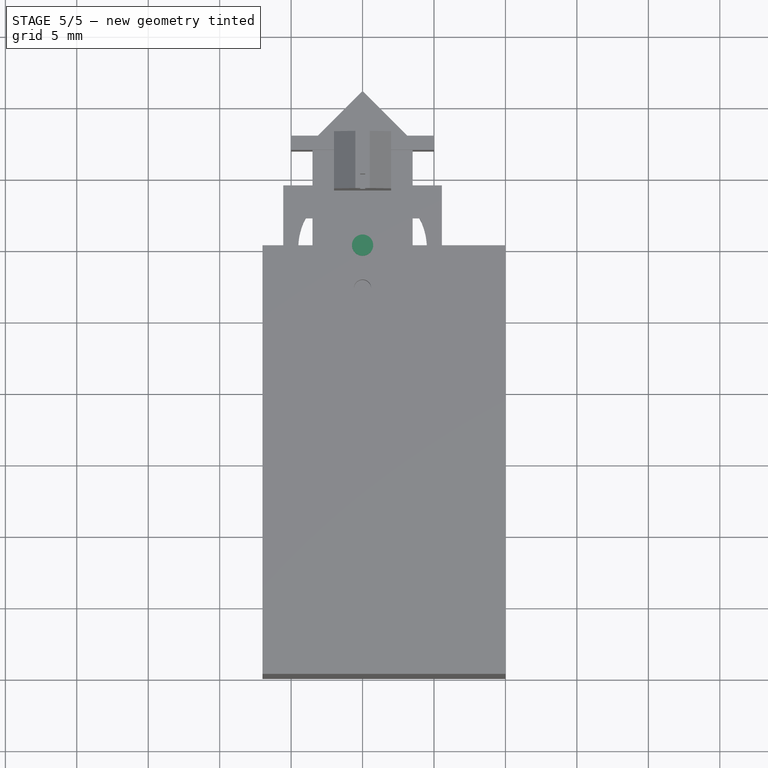
[diagram: stage 5 of 5 — top view after this stage's code; geometry added in this stage tinted green]
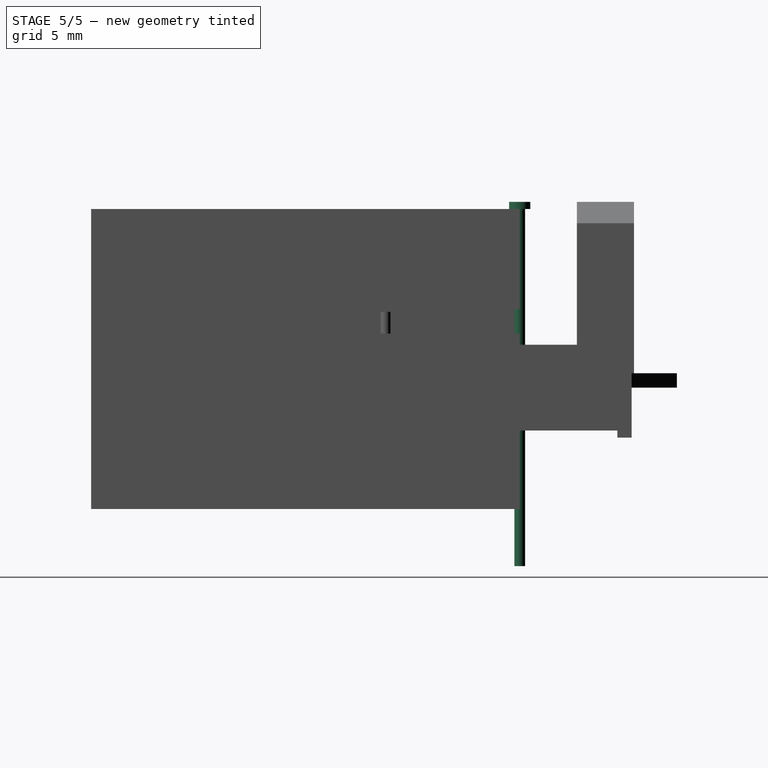
[diagram: stage 5 of 5 — right view after this stage's code; geometry added in this stage tinted green]
FEATURE [Sketcher::SketchObject] Sketch008
  FullyConstrained = true
  MapMode = 5
  Support = -> [XY_Plane008]
  sketch-geometry (1):
    g0: Circle CenterX=0 CenterY=0 CenterZ=0 NormalX=0 NormalY=0 NormalZ=1 AngleXU=0 Radius=0.375
  constraints (2):
    c: Coincident(g0,g-1)
    c: Radius(g0) = 0.375
FEATURE [PartDesign::Pad] Pad007
  Direction = (1,1,1)
  Length = 25
  Length2 = 100
  Midplane = true
  Profile = -> Sketch008
  Type = 0
FEATURE [Sketcher::SketchObject] Sketch015
  FullyConstrained = true
  MapMode = 5
  Support = -> [XY_Plane013]
  sketch-geometry (2):
    g0: Circle CenterX=0 CenterY=0 CenterZ=0 NormalX=0 NormalY=0 NormalZ=1 AngleXU=0 Radius=2.5
    g1: Circle CenterX=0 CenterY=0 CenterZ=0 NormalX=0 NormalY=0 NormalZ=1 AngleXU=0 Radius=0.5
  constraints (4):
    c: Coincident(g0,g-1)
    c: Radius(g0) = 2.5
    c: Coincident(g1,g0)
    c: Radius(g1) = 0.5
FEATURE [PartDesign::Pad] Pad010
  Direction = (1,1,1)
  Length = 1
  Length2 = 100
  Profile = -> Sketch015
  Type = 0
FEATURE [Sketcher::SketchObject] Sketch017
  FullyConstrained = true
  MapMode = 5
  Placement = pos=(0,0,1) rot=(0,0,1;0rad)
  Support = -> [Pad010]
  sketch-geometry (2):
    g0: Circle CenterX=0 CenterY=0 CenterZ=0 NormalX=0 NormalY=0 NormalZ=1 AngleXU=0 Radius=0.97
    g1: Circle CenterX=0 CenterY=0 CenterZ=0 NormalX=0 NormalY=0 NormalZ=1 AngleXU=0 Radius=0.55
  constraints (4):
    c: Coincident(g0,g-1)
    c: Radius(g0) = 0.97
    c: Coincident(g1,g0)
    c: Radius(g1) = 0.55
FEATURE [PartDesign::Pad] Pad011
  BaseFeature = -> Pad010
  Direction = (1,1,1)
  Length = 1.5
  Length2 = 100
  Profile = -> Sketch017
  Type = 0
FEATURE [PartDesign::Body] Body007  label="Magnet Guide"
  Group = -> [Sketch015,Pad010,Sketch017,Pad011]
  Origin = -> Origin013
  Placement = pos=(0,0,-2.2) rot=(0,0,1;0rad)
  Tip = -> Pad011
FEATURE [Sketcher::SketchObject] Sketch018
  FullyConstrained = false
  MapMode = 5
  Placement = pos=(0,0,12.5) rot=(0,0,1;0rad)
  Support = -> [Pad007]
  sketch-geometry (1):
    g0: Circle CenterX=0 CenterY=0 CenterZ=0 NormalX=0 NormalY=0 NormalZ=1 AngleXU=0 Radius=0.742682
  constraints (1):
    c: Coincident(g0,g-1)
FEATURE [PartDesign::Pad] Pad012
  BaseFeature = -> Pad007
  Direction = (1,1,1)
  Length = 0.5
  Length2 = 100
  Profile = -> Sketch018
  Type = 0
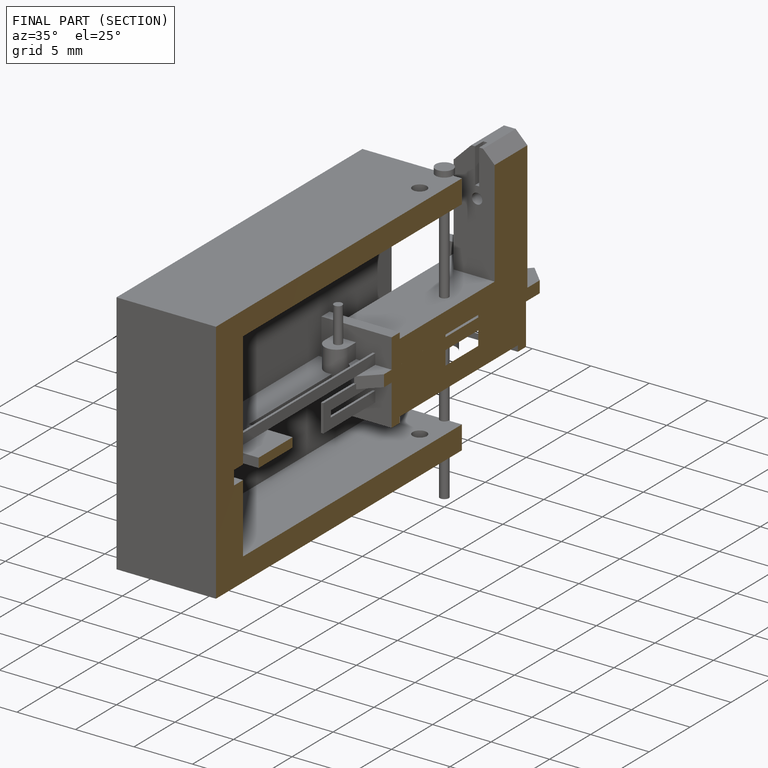
[diagram: finished part — half-section view (interior)]
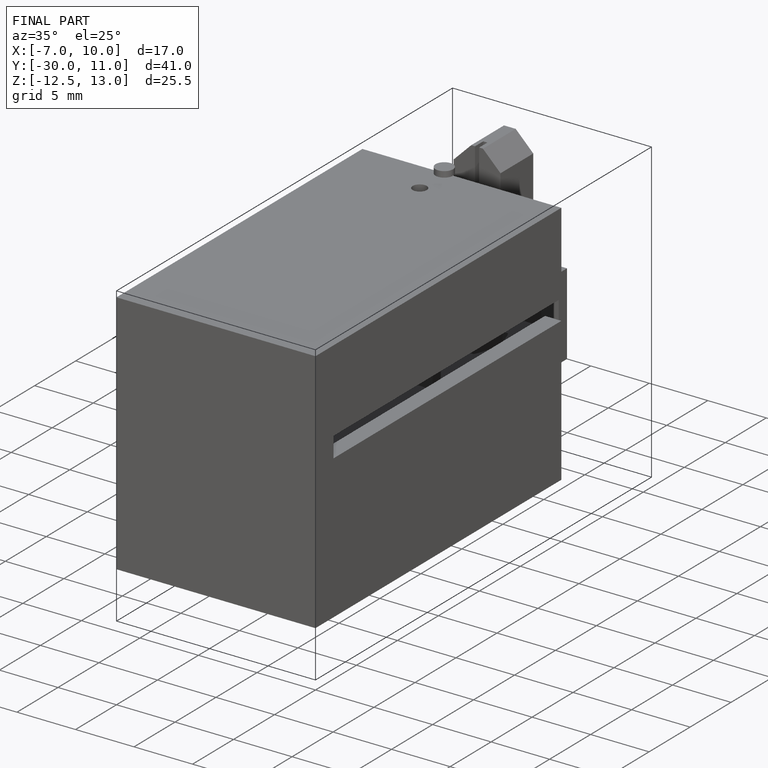
[diagram: finished part — iso view with bounding-box wireframe]
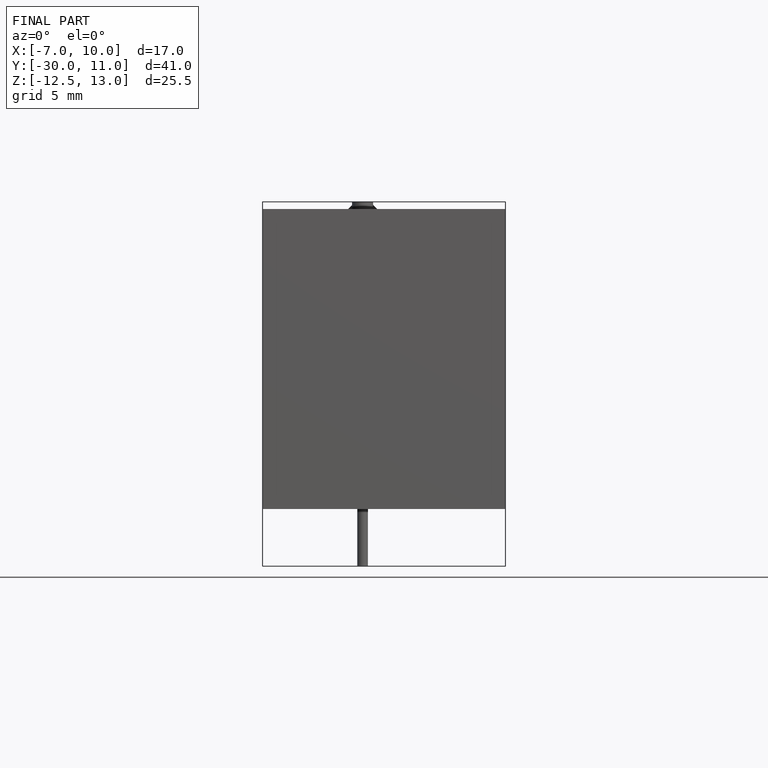
[diagram: finished part — front view with bounding-box wireframe]
